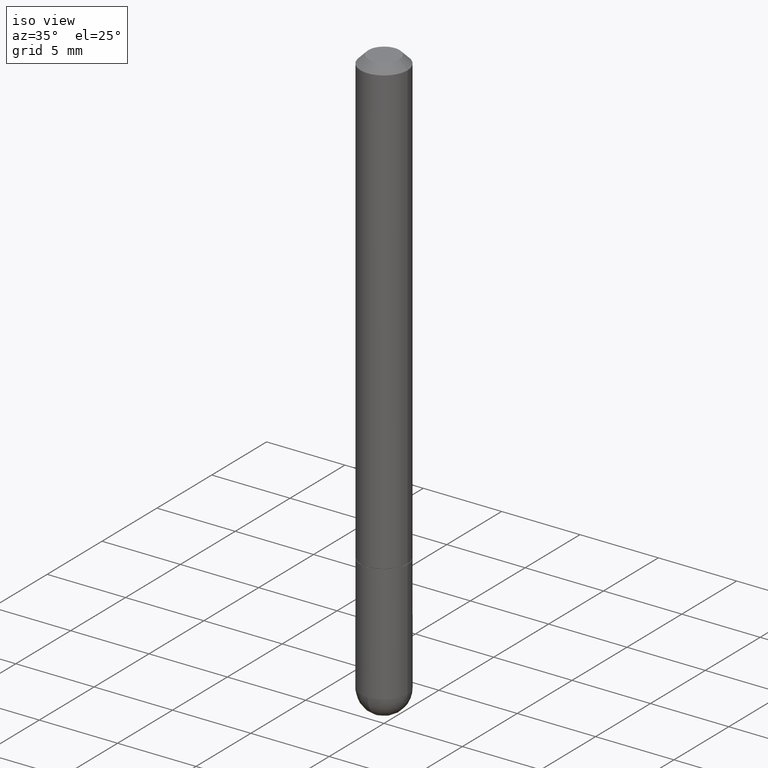
[diagram: clean part render]
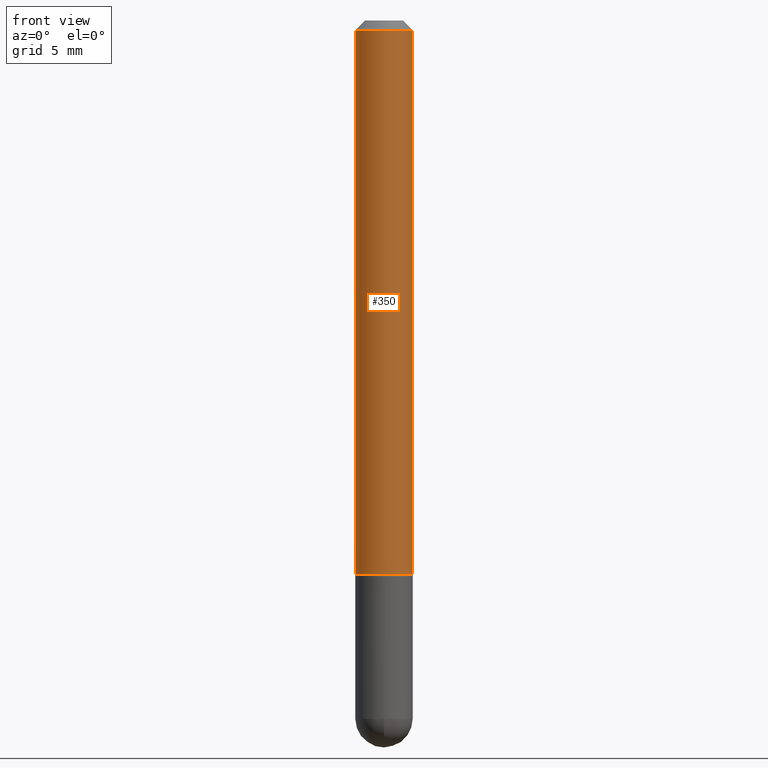
[diagram: tour spotlight — one face highlighted and labeled with its STEP entity id]
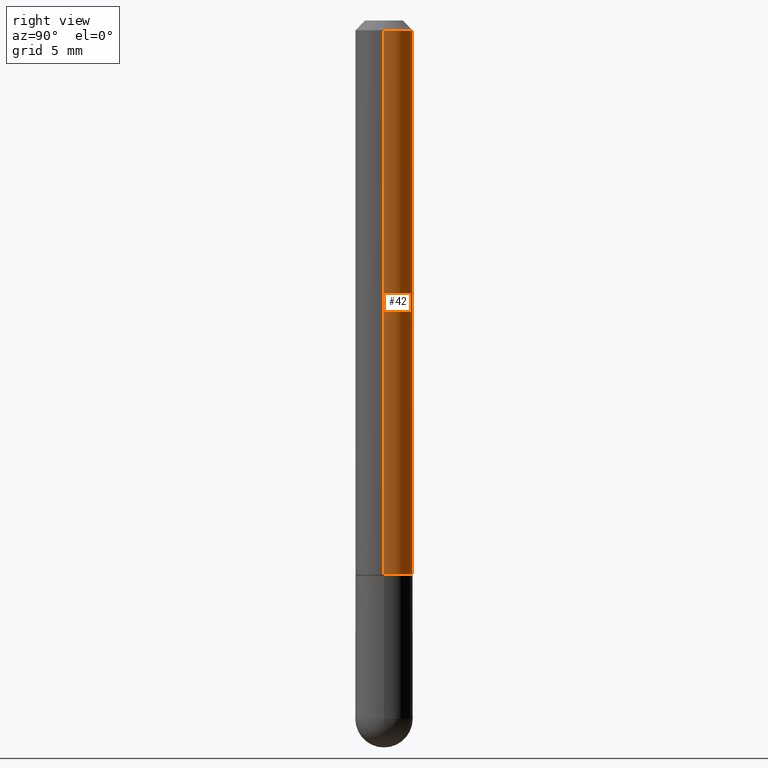
[diagram: tour spotlight — one face highlighted and labeled with its STEP entity id]
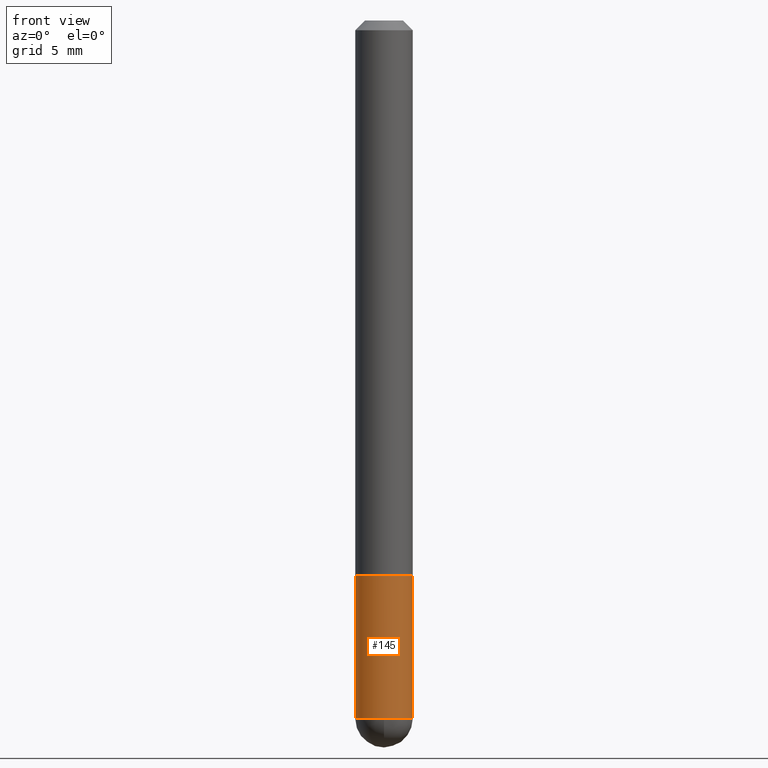
[diagram: tour spotlight — one face highlighted and labeled with its STEP entity id]
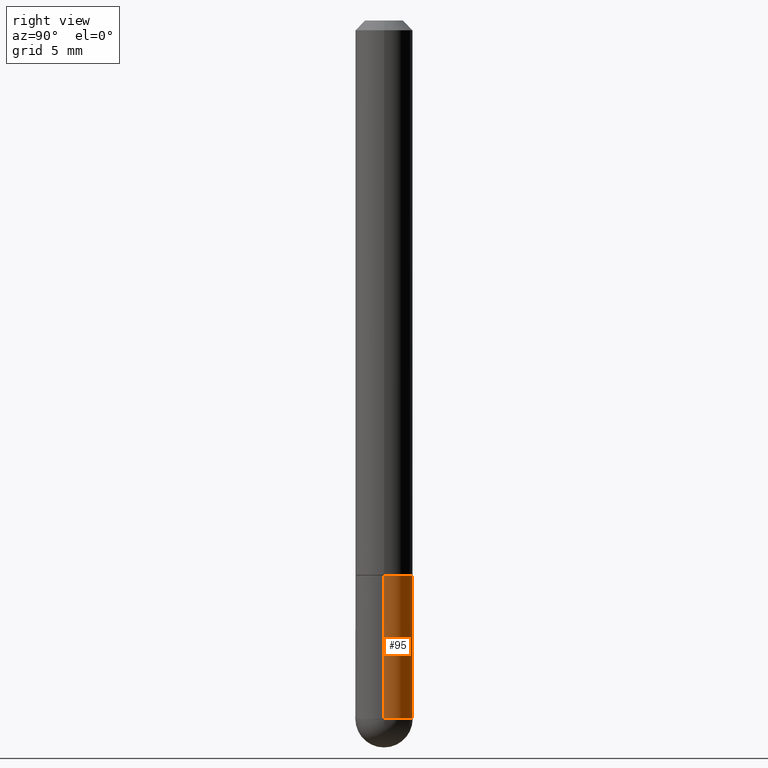
[diagram: tour spotlight — one face highlighted and labeled with its STEP entity id]
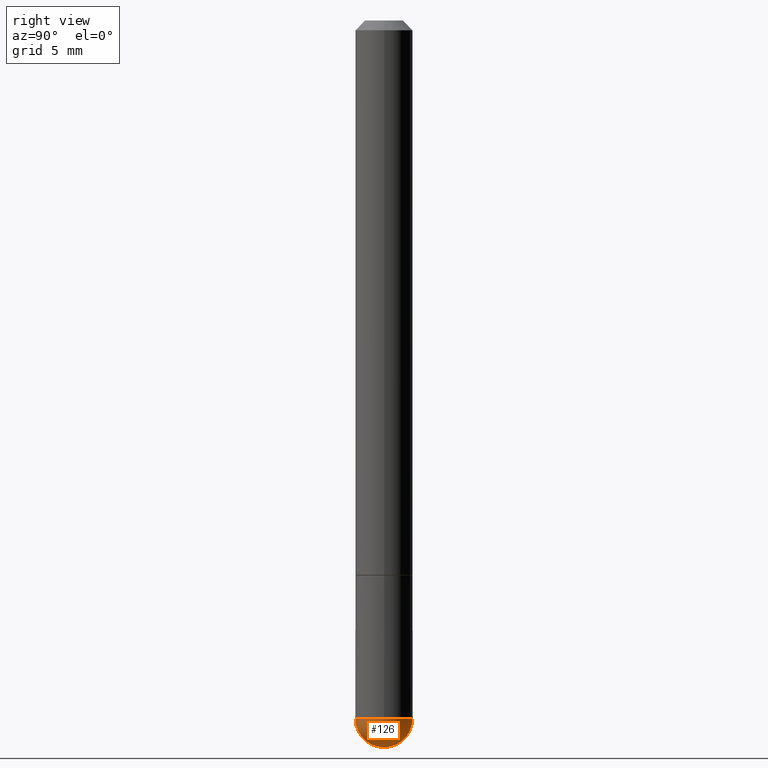
[diagram: tour spotlight — one face highlighted and labeled with its STEP entity id]
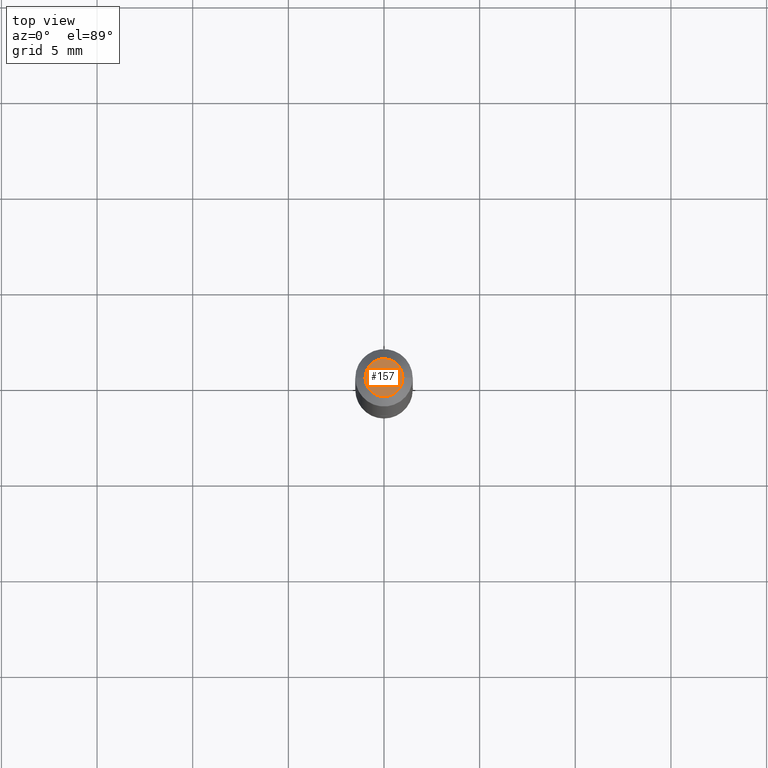
[diagram: tour spotlight — one face highlighted and labeled with its STEP entity id]
A machine part: a face-by-face anatomy tour. The part has 13 B-rep faces; the first image is the clean iso view, then the 6 largest visible faces are spotlighted one at a time (largest first), each with its STEP entity span.

Face 1 — front view, entity #350. In plain terms, the highlighted cylindrical surface (edge-blend (fillet) strip) has radius 1.4999 mm, axis along (-0, 0, 1).
Definition (entity closure, byte-faithful):
#16 = CARTESIAN_POINT ( 'NONE',  ( 0.05905000000000000526, -4.749420335452719692E-16, -0.02000000000000002123 ) ) ;
#20 = AXIS2_PLACEMENT_3D ( 'NONE', #121, #24, #210 ) ;
#24 = DIRECTION ( 'NONE',  ( -2.445468806185136597E-29, 3.491481338843145583E-15, 1.000000000000000000 ) ) ;
#49 = DIRECTION ( 'NONE',  ( 1.000000000000000000, -6.982962677686267499E-15, 0.000000000000000000 ) ) ;
#50 = ORIENTED_EDGE ( 'NONE', *, *, #190, .T. ) ;
#65 = LINE ( 'NONE', #188, #387 ) ;
#78 = ORIENTED_EDGE ( 'NONE', *, *, #263, .F. ) ;
#87 = VERTEX_POINT ( 'NONE', #16 ) ;
#99 = VECTOR ( 'NONE', #293, 39.37007874015748143 ) ;
#121 = CARTESIAN_POINT ( 'NONE',  ( 2.789790814096003463E-29, -3.983081911352260315E-15, -1.140799999999999814 ) ) ;
#122 = CIRCLE ( 'NONE', #266, 0.05905000000000000526 ) ;
#146 = CARTESIAN_POINT ( 'NONE',  ( 4.890937612370278413E-31, -6.982962677686297772E-17, -0.02000000000000002123 ) ) ;
#155 = AXIS2_PLACEMENT_3D ( 'NONE', #403, #372, #185 ) ;
#158 = DIRECTION ( 'NONE',  ( -2.445468806185136877E-29, 3.491481338843145188E-15, 1.000000000000000000 ) ) ;
#185 = DIRECTION ( 'NONE',  ( 1.000000000000000000, -6.982962677686266711E-15, 4.876176775795936353E-29 ) ) ;
#188 = CARTESIAN_POINT ( 'NONE',  ( 0.05905000000000006771, -4.123439461173745257E-16, 2.879382386107503723E-30 ) ) ;
#190 = EDGE_CURVE ( 'NONE', #394, #87, #65, .T. ) ;
#191 = LINE ( 'NONE', #329, #99 ) ;
#196 = CARTESIAN_POINT ( 'NONE',  ( -0.05905000000000013710, -1.606880283598219355E-15, -1.140799999999999814 ) ) ;
#201 = ORIENTED_EDGE ( 'NONE', *, *, #213, .F. ) ;
#202 = DIRECTION ( 'NONE',  ( -2.445468806185136597E-29, 3.491481338843145583E-15, 1.000000000000000000 ) ) ;
#210 = DIRECTION ( 'NONE',  ( 1.000000000000000000, -6.982962677686265133E-15, 0.000000000000000000 ) ) ;
#213 = EDGE_CURVE ( 'NONE', #281, #397, #191, .T. ) ;
#214 = CYLINDRICAL_SURFACE ( 'NONE', #155, 0.05905000000000006771 ) ;
#252 = CIRCLE ( 'NONE', #20, 0.05905000000000013016 ) ;
#263 = EDGE_CURVE ( 'NONE', #397, #87, #122, .T. ) ;
#266 = AXIS2_PLACEMENT_3D ( 'NONE', #146, #202, #49 ) ;
#281 = VERTEX_POINT ( 'NONE', #196 ) ;
#289 = FACE_OUTER_BOUND ( 'NONE', #304, .T. ) ;
#293 = DIRECTION ( 'NONE',  ( -2.445468806185136877E-29, 3.491481338843145188E-15, 1.000000000000000000 ) ) ;
#304 = EDGE_LOOP ( 'NONE', ( #201, #313, #50, #78 ) ) ;
#313 = ORIENTED_EDGE ( 'NONE', *, *, #355, .T. ) ;
#329 = CARTESIAN_POINT ( 'NONE',  ( -0.05905000000000006771, 4.195754854663396409E-16, -2.904631170795525045E-30 ) ) ;
#350 = ADVANCED_FACE ( 'NONE', ( #289 ), #214, .T. ) ;
#354 = CARTESIAN_POINT ( 'NONE',  ( -0.05905000000000000526, 3.425143193405111289E-16, -0.02000000000000002123 ) ) ;
#355 = EDGE_CURVE ( 'NONE', #281, #394, #252, .T. ) ;
#372 = DIRECTION ( 'NONE',  ( -2.445468806185136597E-29, 3.491481338843145583E-15, 1.000000000000000000 ) ) ;
#377 = CARTESIAN_POINT ( 'NONE',  ( 0.05905000000000013016, -4.395425857469635235E-15, -1.140799999999999814 ) ) ;
#387 = VECTOR ( 'NONE', #158, 39.37007874015748143 ) ;
#394 = VERTEX_POINT ( 'NONE', #377 ) ;
#397 = VERTEX_POINT ( 'NONE', #354 ) ;
#403 = CARTESIAN_POINT ( 'NONE',  ( 0.000000000000000000, 0.000000000000000000, 0.000000000000000000 ) ) ;

Face 2 — right view, entity #42. In plain terms, the highlighted cylindrical surface (edge-blend (fillet) strip) has radius 1.4999 mm, axis along (-0, 0, 1).
Definition (entity closure, byte-faithful):
#12 = DIRECTION ( 'NONE',  ( -2.445468806185136597E-29, 3.491481338843145583E-15, 1.000000000000000000 ) ) ;
#16 = CARTESIAN_POINT ( 'NONE',  ( 0.05905000000000000526, -4.749420335452719692E-16, -0.02000000000000002123 ) ) ;
#42 = ADVANCED_FACE ( 'NONE', ( #388 ), #307, .T. ) ;
#43 = ORIENTED_EDGE ( 'NONE', *, *, #213, .T. ) ;
#63 = AXIS2_PLACEMENT_3D ( 'NONE', #81, #12, #105 ) ;
#65 = LINE ( 'NONE', #188, #387 ) ;
#81 = CARTESIAN_POINT ( 'NONE',  ( 0.000000000000000000, 0.000000000000000000, 0.000000000000000000 ) ) ;
#87 = VERTEX_POINT ( 'NONE', #16 ) ;
#99 = VECTOR ( 'NONE', #293, 39.37007874015748143 ) ;
#105 = DIRECTION ( 'NONE',  ( 1.000000000000000000, -6.982962677686266711E-15, 4.876176775795936353E-29 ) ) ;
#119 = EDGE_CURVE ( 'NONE', #394, #281, #221, .T. ) ;
#158 = DIRECTION ( 'NONE',  ( -2.445468806185136877E-29, 3.491481338843145188E-15, 1.000000000000000000 ) ) ;
#161 = EDGE_CURVE ( 'NONE', #87, #397, #409, .T. ) ;
#163 = DIRECTION ( 'NONE',  ( 1.000000000000000000, -6.982962677686267499E-15, 0.000000000000000000 ) ) ;
#166 = ORIENTED_EDGE ( 'NONE', *, *, #161, .F. ) ;
#181 = EDGE_LOOP ( 'NONE', ( #303, #43, #166, #363 ) ) ;
#188 = CARTESIAN_POINT ( 'NONE',  ( 0.05905000000000006771, -4.123439461173745257E-16, 2.879382386107503723E-30 ) ) ;
#189 = CARTESIAN_POINT ( 'NONE',  ( 4.890937612370278413E-31, -6.982962677686297772E-17, -0.02000000000000002123 ) ) ;
#190 = EDGE_CURVE ( 'NONE', #394, #87, #65, .T. ) ;
#191 = LINE ( 'NONE', #329, #99 ) ;
#196 = CARTESIAN_POINT ( 'NONE',  ( -0.05905000000000013710, -1.606880283598219355E-15, -1.140799999999999814 ) ) ;
#213 = EDGE_CURVE ( 'NONE', #281, #397, #191, .T. ) ;
#221 = CIRCLE ( 'NONE', #315, 0.05905000000000013016 ) ;
#265 = CARTESIAN_POINT ( 'NONE',  ( 2.789790814096003463E-29, -3.983081911352260315E-15, -1.140799999999999814 ) ) ;
#281 = VERTEX_POINT ( 'NONE', #196 ) ;
#293 = DIRECTION ( 'NONE',  ( -2.445468806185136877E-29, 3.491481338843145188E-15, 1.000000000000000000 ) ) ;
#295 = AXIS2_PLACEMENT_3D ( 'NONE', #189, #386, #163 ) ;
#303 = ORIENTED_EDGE ( 'NONE', *, *, #119, .T. ) ;
#307 = CYLINDRICAL_SURFACE ( 'NONE', #63, 0.05905000000000006771 ) ;
#315 = AXIS2_PLACEMENT_3D ( 'NONE', #265, #392, #341 ) ;
#329 = CARTESIAN_POINT ( 'NONE',  ( -0.05905000000000006771, 4.195754854663396409E-16, -2.904631170795525045E-30 ) ) ;
#341 = DIRECTION ( 'NONE',  ( 1.000000000000000000, -6.982962677686265133E-15, 0.000000000000000000 ) ) ;
#354 = CARTESIAN_POINT ( 'NONE',  ( -0.05905000000000000526, 3.425143193405111289E-16, -0.02000000000000002123 ) ) ;
#363 = ORIENTED_EDGE ( 'NONE', *, *, #190, .F. ) ;
#377 = CARTESIAN_POINT ( 'NONE',  ( 0.05905000000000013016, -4.395425857469635235E-15, -1.140799999999999814 ) ) ;
#386 = DIRECTION ( 'NONE',  ( -2.445468806185136597E-29, 3.491481338843145583E-15, 1.000000000000000000 ) ) ;
#387 = VECTOR ( 'NONE', #158, 39.37007874015748143 ) ;
#388 = FACE_OUTER_BOUND ( 'NONE', #181, .T. ) ;
#392 = DIRECTION ( 'NONE',  ( -2.445468806185136597E-29, 3.491481338843145583E-15, 1.000000000000000000 ) ) ;
#394 = VERTEX_POINT ( 'NONE', #377 ) ;
#397 = VERTEX_POINT ( 'NONE', #354 ) ;
#409 = CIRCLE ( 'NONE', #295, 0.05905000000000000526 ) ;

Face 3 — front view, entity #145. In plain terms, the highlighted cylindrical surface (edge-blend (fillet) strip) has radius 1.4999 mm, axis along (-0, 0, 1).
Definition (entity closure, byte-faithful):
#3 = LINE ( 'NONE', #385, #373 ) ;
#14 = VERTEX_POINT ( 'NONE', #170 ) ;
#29 = VECTOR ( 'NONE', #69, 39.37007874015748143 ) ;
#39 = VERTEX_POINT ( 'NONE', #44 ) ;
#44 = CARTESIAN_POINT ( 'NONE',  ( -0.05905000000000001914, -4.082427839871483465E-15, -1.437049999999999939 ) ) ;
#58 = DIRECTION ( 'NONE',  ( -2.445468806185136597E-29, 3.491481338843145583E-15, 1.000000000000000000 ) ) ;
#69 = DIRECTION ( 'NONE',  ( -2.445468806185136877E-29, 3.491481338843145188E-15, 1.000000000000000000 ) ) ;
#76 = CARTESIAN_POINT ( 'NONE',  ( 0.000000000000000000, 0.000000000000000000, 0.000000000000000000 ) ) ;
#82 = DIRECTION ( 'NONE',  ( 1.000000000000000000, -6.982962677686265133E-15, 0.000000000000000000 ) ) ;
#97 = LINE ( 'NONE', #224, #29 ) ;
#102 = FACE_OUTER_BOUND ( 'NONE', #147, .T. ) ;
#108 = AXIS2_PLACEMENT_3D ( 'NONE', #305, #312, #82 ) ;
#113 = CARTESIAN_POINT ( 'NONE',  ( -4.195754854663065087E-16, -0.05905000000000538291, -1.437049999999999716 ) ) ;
#128 = DIRECTION ( 'NONE',  ( 1.000000000000000000, -6.982962677686272233E-15, 0.000000000000000000 ) ) ;
#141 = CIRCLE ( 'NONE', #379, 0.05905000000000000526 ) ;
#142 = ORIENTED_EDGE ( 'NONE', *, *, #154, .T. ) ;
#144 = ORIENTED_EDGE ( 'NONE', *, *, #346, .T. ) ;
#145 = ADVANCED_FACE ( 'NONE', ( #102 ), #230, .T. ) ;
#147 = EDGE_LOOP ( 'NONE', ( #285, #142, #144, #390, #308 ) ) ;
#148 = CIRCLE ( 'NONE', #215, 0.05905000000000000526 ) ;
#154 = EDGE_CURVE ( 'NONE', #39, #337, #148, .T. ) ;
#170 = CARTESIAN_POINT ( 'NONE',  ( 0.05905000000000001914, -4.914347271455197089E-15, -1.437049999999999939 ) ) ;
#173 = EDGE_CURVE ( 'NONE', #39, #200, #3, .T. ) ;
#180 = DIRECTION ( 'NONE',  ( 1.000000000000000000, -6.982962677686272233E-15, 0.000000000000000000 ) ) ;
#187 = CIRCLE ( 'NONE', #108, 0.05904999999999999832 ) ;
#200 = VERTEX_POINT ( 'NONE', #261 ) ;
#206 = EDGE_CURVE ( 'NONE', #14, #274, #97, .T. ) ;
#212 = AXIS2_PLACEMENT_3D ( 'NONE', #76, #361, #333 ) ;
#215 = AXIS2_PLACEMENT_3D ( 'NONE', #270, #296, #128 ) ;
#224 = CARTESIAN_POINT ( 'NONE',  ( 0.05904999999999999832, -4.123439461173740327E-16, 2.879382386107500220E-30 ) ) ;
#230 = CYLINDRICAL_SURFACE ( 'NONE', #212, 0.05904999999999999832 ) ;
#247 = EDGE_CURVE ( 'NONE', #200, #274, #187, .T. ) ;
#261 = CARTESIAN_POINT ( 'NONE',  ( -0.05904999999999999832, -4.082427839871483465E-15, -1.141799999999999926 ) ) ;
#270 = CARTESIAN_POINT ( 'NONE',  ( 3.514260947928350449E-29, -5.017433257984542594E-15, -1.437049999999999939 ) ) ;
#274 = VERTEX_POINT ( 'NONE', #334 ) ;
#285 = ORIENTED_EDGE ( 'NONE', *, *, #173, .F. ) ;
#296 = DIRECTION ( 'NONE',  ( -2.445468806185136597E-29, 3.491481338843145583E-15, 1.000000000000000000 ) ) ;
#305 = CARTESIAN_POINT ( 'NONE',  ( 2.792236282902188505E-29, -3.986573392691103322E-15, -1.141799999999999926 ) ) ;
#308 = ORIENTED_EDGE ( 'NONE', *, *, #247, .F. ) ;
#312 = DIRECTION ( 'NONE',  ( -2.445468806185136597E-29, 3.491481338843145583E-15, 1.000000000000000000 ) ) ;
#333 = DIRECTION ( 'NONE',  ( 1.000000000000000000, -6.982962677686266711E-15, 4.876176775795936353E-29 ) ) ;
#334 = CARTESIAN_POINT ( 'NONE',  ( 0.05904999999999999832, -4.398917338808476664E-15, -1.141799999999999926 ) ) ;
#337 = VERTEX_POINT ( 'NONE', #113 ) ;
#346 = EDGE_CURVE ( 'NONE', #337, #14, #141, .T. ) ;
#361 = DIRECTION ( 'NONE',  ( -2.445468806185136597E-29, 3.491481338843145583E-15, 1.000000000000000000 ) ) ;
#373 = VECTOR ( 'NONE', #412, 39.37007874015748143 ) ;
#379 = AXIS2_PLACEMENT_3D ( 'NONE', #408, #58, #180 ) ;
#385 = CARTESIAN_POINT ( 'NONE',  ( -0.05904999999999999832, 4.195754854663391478E-16, -2.904631170795521892E-30 ) ) ;
#390 = ORIENTED_EDGE ( 'NONE', *, *, #206, .T. ) ;
#408 = CARTESIAN_POINT ( 'NONE',  ( 3.514260947928350449E-29, -5.017433257984542594E-15, -1.437049999999999939 ) ) ;
#412 = DIRECTION ( 'NONE',  ( -2.445468806185136877E-29, 3.491481338843145188E-15, 1.000000000000000000 ) ) ;

Face 4 — right view, entity #95. In plain terms, the highlighted cylindrical surface (edge-blend (fillet) strip) has radius 1.4999 mm, axis along (-0, 0, 1).
Definition (entity closure, byte-faithful):
#2 = CIRCLE ( 'NONE', #124, 0.05905000000000000526 ) ;
#3 = LINE ( 'NONE', #385, #373 ) ;
#5 = FACE_OUTER_BOUND ( 'NONE', #172, .T. ) ;
#14 = VERTEX_POINT ( 'NONE', #170 ) ;
#17 = CARTESIAN_POINT ( 'NONE',  ( 3.514260947928350449E-29, -5.017433257984542594E-15, -1.437049999999999939 ) ) ;
#29 = VECTOR ( 'NONE', #69, 39.37007874015748143 ) ;
#39 = VERTEX_POINT ( 'NONE', #44 ) ;
#44 = CARTESIAN_POINT ( 'NONE',  ( -0.05905000000000001914, -4.082427839871483465E-15, -1.437049999999999939 ) ) ;
#48 = CARTESIAN_POINT ( 'NONE',  ( 2.792236282902188505E-29, -3.986573392691103322E-15, -1.141799999999999926 ) ) ;
#54 = CARTESIAN_POINT ( 'NONE',  ( 4.123439461174083974E-16, 0.05904999999999487742, -1.437050000000000161 ) ) ;
#60 = DIRECTION ( 'NONE',  ( 1.000000000000000000, -6.982962677686272233E-15, 0.000000000000000000 ) ) ;
#68 = CIRCLE ( 'NONE', #395, 0.05905000000000000526 ) ;
#69 = DIRECTION ( 'NONE',  ( -2.445468806185136877E-29, 3.491481338843145188E-15, 1.000000000000000000 ) ) ;
#75 = ORIENTED_EDGE ( 'NONE', *, *, #410, .T. ) ;
#77 = DIRECTION ( 'NONE',  ( -2.445468806185136597E-29, 3.491481338843145583E-15, 1.000000000000000000 ) ) ;
#95 = ADVANCED_FACE ( 'NONE', ( #5 ), #134, .T. ) ;
#97 = LINE ( 'NONE', #224, #29 ) ;
#124 = AXIS2_PLACEMENT_3D ( 'NONE', #245, #151, #60 ) ;
#129 = EDGE_CURVE ( 'NONE', #274, #200, #160, .T. ) ;
#130 = DIRECTION ( 'NONE',  ( 1.000000000000000000, -6.982962677686266711E-15, 4.876176775795936353E-29 ) ) ;
#134 = CYLINDRICAL_SURFACE ( 'NONE', #402, 0.05904999999999999832 ) ;
#140 = ORIENTED_EDGE ( 'NONE', *, *, #129, .F. ) ;
#151 = DIRECTION ( 'NONE',  ( -2.445468806185136597E-29, 3.491481338843145583E-15, 1.000000000000000000 ) ) ;
#160 = CIRCLE ( 'NONE', #182, 0.05904999999999999832 ) ;
#165 = DIRECTION ( 'NONE',  ( -2.445468806185136597E-29, 3.491481338843145583E-15, 1.000000000000000000 ) ) ;
#170 = CARTESIAN_POINT ( 'NONE',  ( 0.05905000000000001914, -4.914347271455197089E-15, -1.437049999999999939 ) ) ;
#172 = EDGE_LOOP ( 'NONE', ( #375, #176, #140, #316, #75 ) ) ;
#173 = EDGE_CURVE ( 'NONE', #39, #200, #3, .T. ) ;
#176 = ORIENTED_EDGE ( 'NONE', *, *, #173, .T. ) ;
#182 = AXIS2_PLACEMENT_3D ( 'NONE', #48, #227, #267 ) ;
#200 = VERTEX_POINT ( 'NONE', #261 ) ;
#206 = EDGE_CURVE ( 'NONE', #14, #274, #97, .T. ) ;
#224 = CARTESIAN_POINT ( 'NONE',  ( 0.05904999999999999832, -4.123439461173740327E-16, 2.879382386107500220E-30 ) ) ;
#227 = DIRECTION ( 'NONE',  ( -2.445468806185136597E-29, 3.491481338843145583E-15, 1.000000000000000000 ) ) ;
#232 = EDGE_CURVE ( 'NONE', #374, #39, #68, .T. ) ;
#245 = CARTESIAN_POINT ( 'NONE',  ( 3.514260947928350449E-29, -5.017433257984542594E-15, -1.437049999999999939 ) ) ;
#261 = CARTESIAN_POINT ( 'NONE',  ( -0.05904999999999999832, -4.082427839871483465E-15, -1.141799999999999926 ) ) ;
#267 = DIRECTION ( 'NONE',  ( 1.000000000000000000, -6.982962677686265133E-15, 0.000000000000000000 ) ) ;
#271 = CARTESIAN_POINT ( 'NONE',  ( 0.000000000000000000, 0.000000000000000000, 0.000000000000000000 ) ) ;
#274 = VERTEX_POINT ( 'NONE', #334 ) ;
#310 = DIRECTION ( 'NONE',  ( 1.000000000000000000, -6.982962677686272233E-15, 0.000000000000000000 ) ) ;
#316 = ORIENTED_EDGE ( 'NONE', *, *, #206, .F. ) ;
#334 = CARTESIAN_POINT ( 'NONE',  ( 0.05904999999999999832, -4.398917338808476664E-15, -1.141799999999999926 ) ) ;
#373 = VECTOR ( 'NONE', #412, 39.37007874015748143 ) ;
#374 = VERTEX_POINT ( 'NONE', #54 ) ;
#375 = ORIENTED_EDGE ( 'NONE', *, *, #232, .T. ) ;
#385 = CARTESIAN_POINT ( 'NONE',  ( -0.05904999999999999832, 4.195754854663391478E-16, -2.904631170795521892E-30 ) ) ;
#395 = AXIS2_PLACEMENT_3D ( 'NONE', #17, #77, #310 ) ;
#402 = AXIS2_PLACEMENT_3D ( 'NONE', #271, #165, #130 ) ;
#410 = EDGE_CURVE ( 'NONE', #14, #374, #2, .T. ) ;
#412 = DIRECTION ( 'NONE',  ( -2.445468806185136877E-29, 3.491481338843145188E-15, 1.000000000000000000 ) ) ;

Face 5 — right view, entity #126. In plain terms, the highlighted spherical surface has radius 1.4999 mm.
Definition (entity closure, byte-faithful):
#2 = CIRCLE ( 'NONE', #124, 0.05905000000000000526 ) ;
#6 = DIRECTION ( 'NONE',  ( 6.982962677686265922E-15, 1.000000000000000000, -4.626330217890349615E-15 ) ) ;
#7 = CARTESIAN_POINT ( 'NONE',  ( 3.183141170014464762E-29, -5.491615626124592102E-15, -1.437049999999999939 ) ) ;
#14 = VERTEX_POINT ( 'NONE', #170 ) ;
#35 = AXIS2_PLACEMENT_3D ( 'NONE', #195, #301, #6 ) ;
#53 = ORIENTED_EDGE ( 'NONE', *, *, #398, .F. ) ;
#54 = CARTESIAN_POINT ( 'NONE',  ( 4.123439461174083974E-16, 0.05904999999999487742, -1.437050000000000161 ) ) ;
#58 = DIRECTION ( 'NONE',  ( -2.445468806185136597E-29, 3.491481338843145583E-15, 1.000000000000000000 ) ) ;
#60 = DIRECTION ( 'NONE',  ( 1.000000000000000000, -6.982962677686272233E-15, 0.000000000000000000 ) ) ;
#71 = CARTESIAN_POINT ( 'NONE',  ( 3.330070981488499955E-29, -5.694171829508798064E-15, -1.496100000000000207 ) ) ;
#83 = VERTEX_POINT ( 'NONE', #71 ) ;
#90 = DIRECTION ( 'NONE',  ( -7.105427357601001070E-15, -1.000000000000000000, 0.000000000000000000 ) ) ;
#107 = ORIENTED_EDGE ( 'NONE', *, *, #410, .F. ) ;
#113 = CARTESIAN_POINT ( 'NONE',  ( -4.195754854663065087E-16, -0.05905000000000538291, -1.437049999999999716 ) ) ;
#118 = ORIENTED_EDGE ( 'NONE', *, *, #287, .T. ) ;
#124 = AXIS2_PLACEMENT_3D ( 'NONE', #245, #151, #60 ) ;
#126 = ADVANCED_FACE ( 'NONE', ( #359 ), #198, .T. ) ;
#141 = CIRCLE ( 'NONE', #379, 0.05905000000000000526 ) ;
#151 = DIRECTION ( 'NONE',  ( -2.445468806185136597E-29, 3.491481338843145583E-15, 1.000000000000000000 ) ) ;
#159 = CIRCLE ( 'NONE', #320, 0.05905000000000025506 ) ;
#170 = CARTESIAN_POINT ( 'NONE',  ( 0.05905000000000001914, -4.914347271455197089E-15, -1.437049999999999939 ) ) ;
#180 = DIRECTION ( 'NONE',  ( 1.000000000000000000, -6.982962677686272233E-15, 0.000000000000000000 ) ) ;
#195 = CARTESIAN_POINT ( 'NONE',  ( 3.183141170014464762E-29, -5.491615626124592102E-15, -1.437049999999999939 ) ) ;
#198 = SPHERICAL_SURFACE ( 'NONE', #35, 0.05905000000000025506 ) ;
#243 = EDGE_LOOP ( 'NONE', ( #53, #118, #107, #306 ) ) ;
#245 = CARTESIAN_POINT ( 'NONE',  ( 3.514260947928350449E-29, -5.017433257984542594E-15, -1.437049999999999939 ) ) ;
#276 = DIRECTION ( 'NONE',  ( 1.000000000000000000, -6.982962677686265922E-15, 4.883557194083112340E-29 ) ) ;
#282 = DIRECTION ( 'NONE',  ( 6.982962677686266711E-15, 1.000000000000000000, 0.000000000000000000 ) ) ;
#287 = EDGE_CURVE ( 'NONE', #83, #374, #356, .T. ) ;
#301 = DIRECTION ( 'NONE',  ( -1.000000000000000000, 6.982962677686265922E-15, -4.883557194083112340E-29 ) ) ;
#306 = ORIENTED_EDGE ( 'NONE', *, *, #346, .F. ) ;
#320 = AXIS2_PLACEMENT_3D ( 'NONE', #352, #381, #90 ) ;
#324 = AXIS2_PLACEMENT_3D ( 'NONE', #7, #276, #282 ) ;
#337 = VERTEX_POINT ( 'NONE', #113 ) ;
#346 = EDGE_CURVE ( 'NONE', #337, #14, #141, .T. ) ;
#352 = CARTESIAN_POINT ( 'NONE',  ( 3.183141170014464762E-29, -5.491615626124592102E-15, -1.437049999999999939 ) ) ;
#356 = CIRCLE ( 'NONE', #324, 0.05905000000000025506 ) ;
#359 = FACE_OUTER_BOUND ( 'NONE', #243, .T. ) ;
#374 = VERTEX_POINT ( 'NONE', #54 ) ;
#379 = AXIS2_PLACEMENT_3D ( 'NONE', #408, #58, #180 ) ;
#381 = DIRECTION ( 'NONE',  ( -1.000000000000000000, 7.105427357601001070E-15, -4.926315508542082329E-29 ) ) ;
#398 = EDGE_CURVE ( 'NONE', #83, #337, #159, .T. ) ;
#408 = CARTESIAN_POINT ( 'NONE',  ( 3.514260947928350449E-29, -5.017433257984542594E-15, -1.437049999999999939 ) ) ;
#410 = EDGE_CURVE ( 'NONE', #14, #374, #2, .T. ) ;

Face 6 — top view, entity #157. In plain terms, the highlighted planar face has unit normal (0, -0, -1).
Definition (entity closure, byte-faithful):
#1 = DIRECTION ( 'NONE',  ( 2.438088387897960049E-29, -3.491481338843145188E-15, -1.000000000000000000 ) ) ;
#15 = CIRCLE ( 'NONE', #31, 0.03905000000000004301 ) ;
#19 = EDGE_LOOP ( 'NONE', ( #348, #47 ) ) ;
#31 = AXIS2_PLACEMENT_3D ( 'NONE', #171, #207, #342 ) ;
#32 = CARTESIAN_POINT ( 'NONE',  ( 2.726846925636489647E-16, 0.03905000000000004301, -1.427451150169756154E-16 ) ) ;
#47 = ORIENTED_EDGE ( 'NONE', *, *, #370, .T. ) ;
#55 = VERTEX_POINT ( 'NONE', #364 ) ;
#94 = DIRECTION ( 'NONE',  ( -1.000000000000000000, 6.982962677686265922E-15, -4.876176775795935793E-29 ) ) ;
#116 = DIRECTION ( 'NONE',  ( -2.445468806185136597E-29, 3.491481338843145583E-15, 1.000000000000000000 ) ) ;
#117 = CARTESIAN_POINT ( 'NONE',  ( 3.131554243005667043E-46, -4.471029511141352822E-32, -1.280553747030126465E-17 ) ) ;
#157 = ADVANCED_FACE ( 'NONE', ( #256 ), #383, .F. ) ;
#171 = CARTESIAN_POINT ( 'NONE',  ( 3.131554243005667043E-46, -4.471029511141352822E-32, -1.280553747030126465E-17 ) ) ;
#207 = DIRECTION ( 'NONE',  ( -2.445468806185136597E-29, 3.491481338843145583E-15, 1.000000000000000000 ) ) ;
#251 = DIRECTION ( 'NONE',  ( 1.000000000000000000, -6.982962677686266711E-15, 4.878561691827482436E-29 ) ) ;
#256 = FACE_OUTER_BOUND ( 'NONE', #19, .T. ) ;
#257 = AXIS2_PLACEMENT_3D ( 'NONE', #117, #116, #251 ) ;
#278 = VERTEX_POINT ( 'NONE', #393 ) ;
#325 = EDGE_CURVE ( 'NONE', #278, #55, #15, .T. ) ;
#339 = CIRCLE ( 'NONE', #257, 0.03905000000000004301 ) ;
#342 = DIRECTION ( 'NONE',  ( 1.000000000000000000, -6.982962677686266711E-15, 4.878561691827482436E-29 ) ) ;
#348 = ORIENTED_EDGE ( 'NONE', *, *, #325, .T. ) ;
#364 = CARTESIAN_POINT ( 'NONE',  ( 0.03905000000000004301, -3.714222401791252845E-16, -1.280553747029901208E-17 ) ) ;
#370 = EDGE_CURVE ( 'NONE', #55, #278, #339, .T. ) ;
#378 = AXIS2_PLACEMENT_3D ( 'NONE', #32, #1, #94 ) ;
#383 = PLANE ( 'NONE',  #378 ) ;
#393 = CARTESIAN_POINT ( 'NONE',  ( -0.03905000000000004301, 3.075995059520800222E-16, -1.280553747030329227E-17 ) ) ;